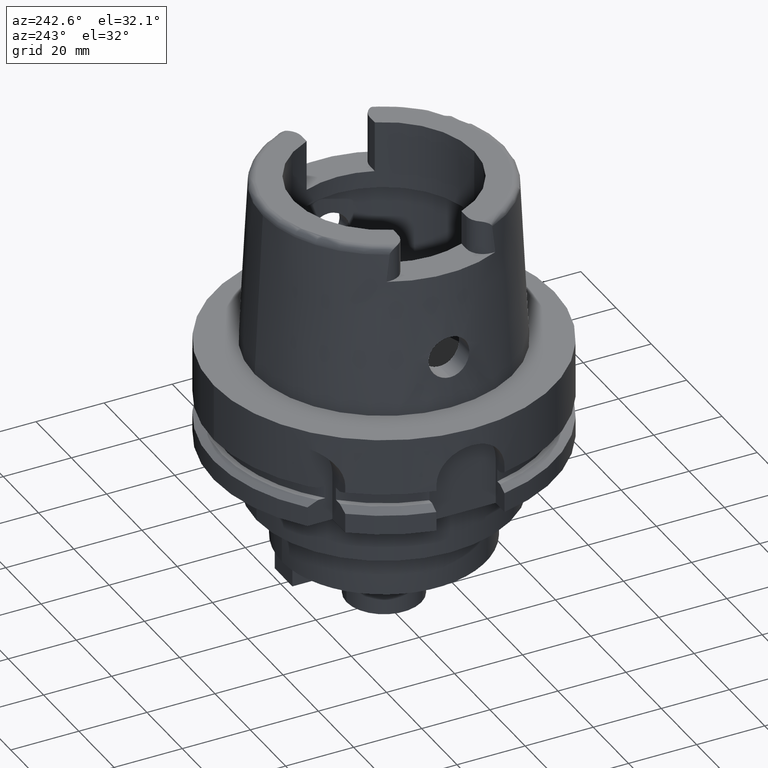
[diagram: clean part render]
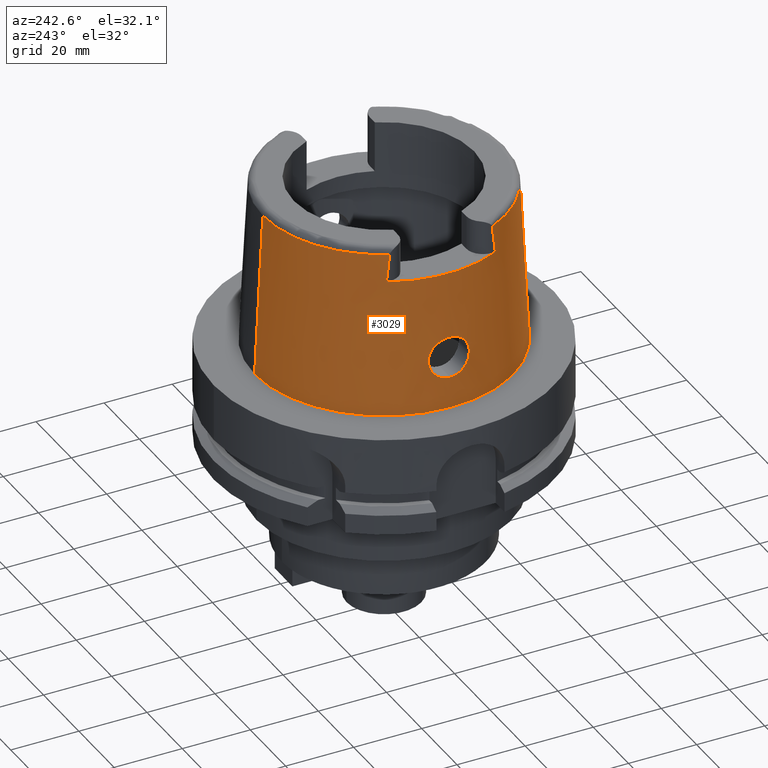
[diagram: same view with one face highlighted and labeled with its STEP entity id]
A machine part, auxiliary view. The second image highlights one B-rep face of the part: STEP entity #3029.
In plain terms, the highlighted conical surface has half-angle 2.862 deg.
Its self-contained STEP definition (entity closure, byte-faithful):
#130=CARTESIAN_POINT('',(0.E0,0.E0,4.E1));
#131=DIRECTION('',(0.E0,0.E0,-1.E0));
#132=DIRECTION('',(-8.958345712660E-1,-4.443876921391E-1,0.E0));
#133=AXIS2_PLACEMENT_3D('',#130,#131,#132);
#221=CARTESIAN_POINT('',(-3.224999491821E1,-1.506448488220E1,4.809973199133E1));
#281=CARTESIAN_POINT('',(0.E0,0.E0,4.809987853799E1));
#282=DIRECTION('',(0.E0,0.E0,-1.E0));
#283=DIRECTION('',(0.E0,-1.E0,0.E0));
#284=AXIS2_PLACEMENT_3D('',#281,#282,#283);
#289=CARTESIAN_POINT('',(-3.224999876012E1,-1.599794043148E1,4.E1));
#290=CARTESIAN_POINT('',(-3.224999876012E1,-1.589618560063E1,4.090434232027E1));
#291=CARTESIAN_POINT('',(-3.224999990104E1,-1.569149928965E1,4.271014761463E1));
#292=CARTESIAN_POINT('',(-3.225000220619E1,-1.538028256270E1,4.541006255151E1));
#293=CARTESIAN_POINT('',(-3.224999491821E1,-1.517027177640E1,4.720434002341E1));
#294=CARTESIAN_POINT('',(-3.224999491821E1,-1.506448488220E1,4.809973199133E1));
#299=DIRECTION('',(5.154182075151E-5,-4.993927430816E-2,-9.987522546783E-1));
#300=VECTOR('',#299,4.815996991514E1);
#301=CARTESIAN_POINT('',(-2.482252536761E-3,-3.559494263425E1,
4.809987853799E1));
#302=LINE('',#301,#300);
#306=CARTESIAN_POINT('',(-3.225000136841E1,1.506443226268E1,4.809991938653E1));
#307=CARTESIAN_POINT('',(-3.225000136841E1,1.517024629905E1,4.720430014711E1));
#308=CARTESIAN_POINT('',(-3.225000007421E1,1.538032523185E1,4.541024587913E1));
#309=CARTESIAN_POINT('',(-3.224999768767E1,1.569154927031E1,4.271027465771E1));
#310=CARTESIAN_POINT('',(-3.225000534596E1,1.589614940559E1,4.090439636549E1));
#311=CARTESIAN_POINT('',(-3.225000534596E1,1.599791057085E1,4.E1));
#316=CARTESIAN_POINT('',(-3.755000165825E1,1.571614468377E-13,9.E0));
#317=CARTESIAN_POINT('',(-3.755000165825E1,-4.744489794429E-1,9.E0));
#318=CARTESIAN_POINT('',(-3.752596997867E1,-1.427976149876E0,9.113484328839E0));
#319=CARTESIAN_POINT('',(-3.742289772680E1,-2.788112281060E0,9.620108325654E0));
#320=CARTESIAN_POINT('',(-3.726836316632E1,-4.003264732832E0,1.045328553081E1));
#321=CARTESIAN_POINT('',(-3.709666661984E1,-4.961356916505E0,1.152340920780E1));
#322=CARTESIAN_POINT('',(-3.692880721407E1,-5.658509552911E0,1.282966780890E1));
#323=CARTESIAN_POINT('',(-3.679917371124E1,-6.013282084559E0,1.425610511008E1));
#324=CARTESIAN_POINT('',(-3.672460991720E1,-6.015321717485E0,1.572049006202E1));
#325=CARTESIAN_POINT('',(-3.670906257618E1,-5.671602652223E0,1.712939471346E1));
#326=CARTESIAN_POINT('',(-3.674334597245E1,-4.998919512099E0,1.842155452490E1));
#327=CARTESIAN_POINT('',(-3.680814587357E1,-4.045744164604E0,1.951013817821E1));
#328=CARTESIAN_POINT('',(-3.688126631907E1,-2.832122944989E0,2.035816281908E1));
#329=CARTESIAN_POINT('',(-3.693653607262E1,-1.452381161642E0,2.088274992441E1));
#330=CARTESIAN_POINT('',(-3.694998175923E1,-4.831268470690E-1,2.1E1));
#331=CARTESIAN_POINT('',(-3.694998175923E1,0.E0,2.1E1));
#336=CARTESIAN_POINT('',(-3.694998175923E1,0.E0,2.1E1));
#337=CARTESIAN_POINT('',(-3.694998175923E1,4.800132707520E-1,2.1E1));
#338=CARTESIAN_POINT('',(-3.693670412137E1,1.442858995222E0,2.088415980685E1));
#339=CARTESIAN_POINT('',(-3.688220064721E1,2.812747821382E0,2.036736263186E1));
#340=CARTESIAN_POINT('',(-3.680967174158E1,4.022810065584E0,1.952982214821E1));
#341=CARTESIAN_POINT('',(-3.674462730662E1,4.979273328165E0,1.845012334709E1));
#342=CARTESIAN_POINT('',(-3.670926564627E1,5.661086593194E0,1.715825182940E1));
#343=CARTESIAN_POINT('',(-3.672378442444E1,6.011026424508E0,1.575083131186E1));
#344=CARTESIAN_POINT('',(-3.679622338916E1,6.017021367452E0,1.430199227112E1));
#345=CARTESIAN_POINT('',(-3.692183536021E1,5.681388042239E0,1.289552181978E1));
#346=CARTESIAN_POINT('',(-3.708683019139E1,5.008337678235E0,1.159090579183E1));
#347=CARTESIAN_POINT('',(-3.726117783552E1,4.051784419142E0,1.049353177963E1));
#348=CARTESIAN_POINT('',(-3.742019965361E1,2.819438828307E0,9.633420488547E0));
#349=CARTESIAN_POINT('',(-3.752613487209E1,1.431441390529E0,9.112630714178E0));
#350=CARTESIAN_POINT('',(-3.755000165825E1,4.737398260732E-1,9.E0));
#351=CARTESIAN_POINT('',(-3.755000165825E1,1.571614468377E-13,9.E0));
#366=DIRECTION('',(-5.154182075159E-5,4.993927430816E-2,-9.987522546783E-1));
#367=VECTOR('',#366,4.815996991514E1);
#368=CARTESIAN_POINT('',(2.482252536765E-3,3.559494263425E1,4.809987853799E1));
#369=LINE('',#368,#367);
#2078=CARTESIAN_POINT('',(0.E0,0.E0,1.023181539495E-12));
#2079=DIRECTION('',(0.E0,0.E0,1.E0));
#2080=DIRECTION('',(0.E0,1.E0,0.E0));
#2081=AXIS2_PLACEMENT_3D('',#2078,#2079,#2080);
#2410=CARTESIAN_POINT('',(-3.225000136841E1,1.506443226268E1,4.809991938653E1));
#2415=CARTESIAN_POINT('',(0.E0,0.E0,4.809987853799E1));
#2416=DIRECTION('',(0.E0,0.E0,-1.E0));
#2417=DIRECTION('',(-9.060276961631E-1,4.232183996300E-1,0.E0));
#2418=AXIS2_PLACEMENT_3D('',#2415,#2416,#2417);
#2503=CARTESIAN_POINT('',(-3.224999876012E1,-1.599794043148E1,4.E1));
#2504=VERTEX_POINT('',#2503);
#2505=CARTESIAN_POINT('',(-3.224999999999E1,1.599793480981E1,4.E1));
#2506=VERTEX_POINT('',#2505);
#2508=VERTEX_POINT('',#2410);
#2509=CARTESIAN_POINT('',(0.E0,3.559494289391E1,4.809987853799E1));
#2510=VERTEX_POINT('',#2509);
#2514=VERTEX_POINT('',#221);
#2517=CARTESIAN_POINT('',(1.065814103640E-14,-3.559494289391E1,
4.809987853799E1));
#2518=VERTEX_POINT('',#2517);
#2519=CARTESIAN_POINT('',(0.E0,-3.800001658252E1,6.892264536873E-13));
#2520=VERTEX_POINT('',#2519);
#2521=CARTESIAN_POINT('',(0.E0,3.800001658252E1,1.023181539495E-12));
#2522=VERTEX_POINT('',#2521);
#2523=VERTEX_POINT('',#316);
#2524=VERTEX_POINT('',#331);
#3003=CARTESIAN_POINT('',(0.E0,0.E0,2.404993926900E1));
#3004=DIRECTION('',(0.E0,0.E0,-1.E0));
#3005=DIRECTION('',(0.E0,-1.E0,0.E0));
#3006=AXIS2_PLACEMENT_3D('',#3003,#3004,#3005);
#3007=CONICAL_SURFACE('',#3006,3.679747973821E1,2.8625E0);
#3008=ORIENTED_EDGE('',*,*,#2912,.F.);
#3009=ORIENTED_EDGE('',*,*,#2995,.T.);
#3010=ORIENTED_EDGE('',*,*,#2985,.F.);
#3012=ORIENTED_EDGE('',*,*,#3011,.T.);
#3014=ORIENTED_EDGE('',*,*,#3013,.F.);
#3016=ORIENTED_EDGE('',*,*,#3015,.F.);
#3018=ORIENTED_EDGE('',*,*,#3017,.F.);
#3020=ORIENTED_EDGE('',*,*,#3019,.T.);
#3021=EDGE_LOOP('',(#3008,#3009,#3010,#3012,#3014,#3016,#3018,#3020));
#3022=FACE_OUTER_BOUND('',#3021,.F.);
#3024=ORIENTED_EDGE('',*,*,#3023,.T.);
#3026=ORIENTED_EDGE('',*,*,#3025,.T.);
#3027=EDGE_LOOP('',(#3024,#3026));
#3028=FACE_BOUND('',#3027,.F.);
#134=CIRCLE('',#133,3.599995025244E1);
#285=CIRCLE('',#284,3.559494289391E1);
#295=B_SPLINE_CURVE_WITH_KNOTS('',3,(#289,#290,#291,#292,#293,#294),
.UNSPECIFIED.,.F.,.F.,(4,1,1,4),(0.E0,3.333333333333E-1,6.666666666667E-1,1.E0),
.UNSPECIFIED.);
#312=B_SPLINE_CURVE_WITH_KNOTS('',3,(#306,#307,#308,#309,#310,#311),
.UNSPECIFIED.,.F.,.F.,(4,1,1,4),(0.E0,3.333333333333E-1,6.666666666667E-1,1.E0),
.UNSPECIFIED.);
#332=B_SPLINE_CURVE_WITH_KNOTS('',3,(#316,#317,#318,#319,#320,#321,#322,#323,
#324,#325,#326,#327,#328,#329,#330,#331),.UNSPECIFIED.,.F.,.F.,(4,1,1,1,1,1,1,1,
1,1,1,1,1,4),(0.E0,7.692307692308E-2,1.538461538462E-1,2.307692307692E-1,
3.076923076923E-1,3.846153846154E-1,4.615384615385E-1,5.384615384615E-1,
6.153846153846E-1,6.923076923077E-1,7.692307692308E-1,8.461538461538E-1,
9.230769230769E-1,1.E0),.UNSPECIFIED.);
#352=B_SPLINE_CURVE_WITH_KNOTS('',3,(#336,#337,#338,#339,#340,#341,#342,#343,
#344,#345,#346,#347,#348,#349,#350,#351),.UNSPECIFIED.,.F.,.F.,(4,1,1,1,1,1,1,1,
1,1,1,1,1,4),(0.E0,7.692307692308E-2,1.538461538462E-1,2.307692307692E-1,
3.076923076923E-1,3.846153846154E-1,4.615384615385E-1,5.384615384615E-1,
6.153846153846E-1,6.923076923077E-1,7.692307692308E-1,8.461538461538E-1,
9.230769230769E-1,1.E0),.UNSPECIFIED.);
#2082=CIRCLE('',#2081,3.800001658252E1);
#2419=CIRCLE('',#2418,3.559494289391E1);
#2912=EDGE_CURVE('',#2504,#2506,#134,.T.);
#2985=EDGE_CURVE('',#2518,#2514,#285,.T.);
#2995=EDGE_CURVE('',#2504,#2514,#295,.T.);
#3011=EDGE_CURVE('',#2518,#2520,#302,.T.);
#3013=EDGE_CURVE('',#2522,#2520,#2082,.T.);
#3015=EDGE_CURVE('',#2510,#2522,#369,.T.);
#3017=EDGE_CURVE('',#2508,#2510,#2419,.T.);
#3019=EDGE_CURVE('',#2508,#2506,#312,.T.);
#3023=EDGE_CURVE('',#2523,#2524,#332,.T.);
#3025=EDGE_CURVE('',#2524,#2523,#352,.T.);
#3029=ADVANCED_FACE('',(#3022,#3028),#3007,.T.);